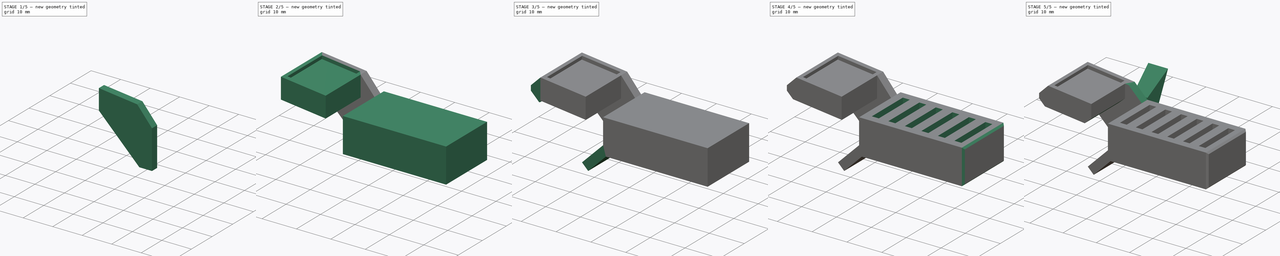
[diagram: build sequence overview — one tinted view per stage of 5, left to right]
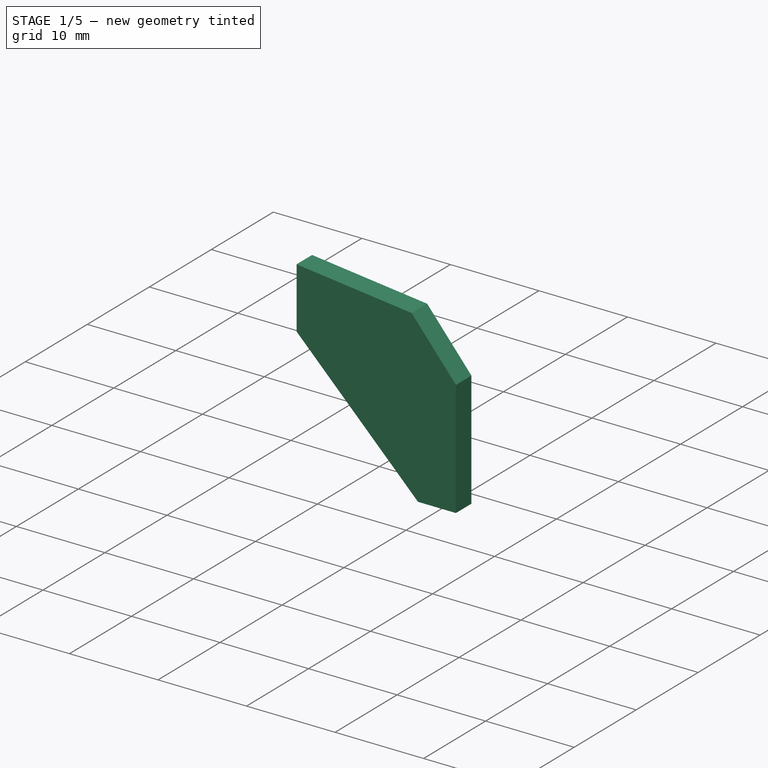
[diagram: stage 1 of 5 — iso view after this stage's code; geometry added in this stage tinted green]
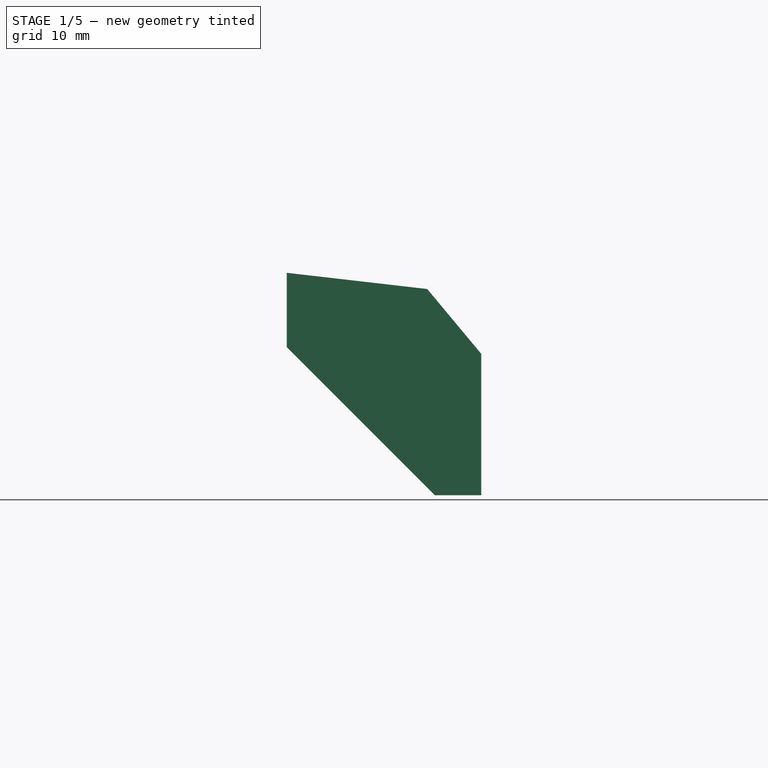
[diagram: stage 1 of 5 — front view after this stage's code; geometry added in this stage tinted green]
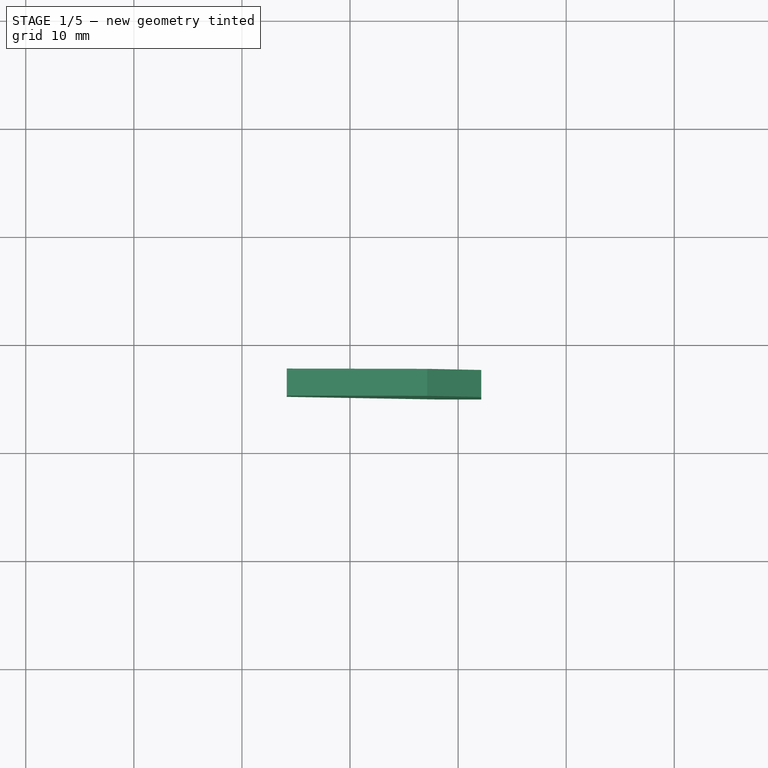
[diagram: stage 1 of 5 — top view after this stage's code; geometry added in this stage tinted green]
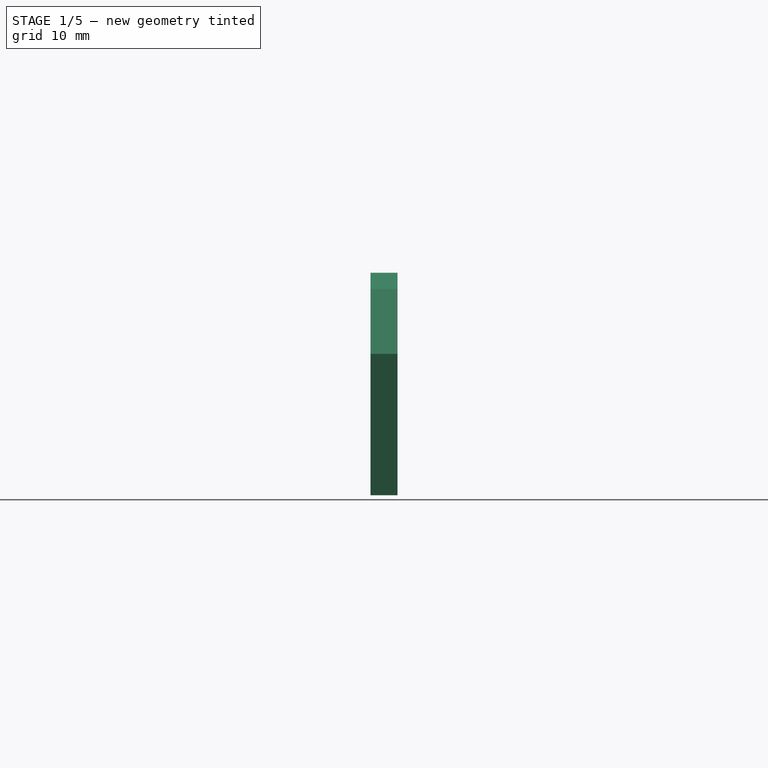
[diagram: stage 1 of 5 — right view after this stage's code; geometry added in this stage tinted green]
FCSTD DOCUMENT  (FreeCAD 2024.1006R14555 (Git shallow))
Label: silicone pad Revo
License: All rights reserved
LicenseURL: http://en.wikipedia.org/wiki/All_rights_reserved
objects: Sketcher::SketchObject×10, PartDesign::Pad×7, PartDesign::Chamfer×4, PartDesign::Pocket×3, PartDesign::SubShapeBinder×2, PartDesign::Body×2, Part::Feature×1, Part::Refine×1, Part::Cut×1, Part::SubShapeBinder×1, App::Link×1, Part::MultiFuse×1
note: 71 computed .brp shape members not serialized (recipe doc carries the construction recipe); baked Part::Feature solids carry a one-line shape summary decoded from their .brp

FEATURE [Part::Feature] ArtistDPro_PurgeBucketRedesign_Bucket_22APR21001_solid  label="ArtistDPro_PurgeBucketRedesign_Bucket_22APR21001 (Solid)"
  FixShape = 1
  InvalidShape = false
  TreeRank = 3
  ValidateShape = false
  shape: bbox 59 x 51.68 x 33.75 mm, 21792 faces (baked)
FEATURE [Part::Refine] Refined  label="ArtistDPro_PurgeBucketRedesign_Bucket_22APR21001 (Solid)001"
  FixShape = 1
  InvalidShape = false
  Source = -> ArtistDPro_PurgeBucketRedesign_Bucket_22APR21001_solid
  TreeRank = 4
  ValidateShape = false
FEATURE [PartDesign::SubShapeBinder] Binder  label="Binder(ArtistDPro_PurgeBucketRedesign_Bucket_22APR21001 (Solid)001)..."
  BindCopyOnChange = 0
  BindMode = 0
  ClaimChildren = false
  Context = -> Body [Binder.]
  EdgeTolerance = 1e-06
  FillStyle = 0
  FixShape = 1
  Fuse = false
  InvalidShape = false
  MakeFace = true
  MergeEdges = true
  OffsetFill = false
  OffsetIntersection = false
  OffsetJoinType = 0
  OffsetOpenResult = false
  Outline = false
  PartialLoad = false
  Relative = true
  SplitEdges = false
  Support = -> [Refined[Edge22621,Edge22615,Edge32]]
  TightBound = false
  TreeRank = 18
  ValidateShape = false
  _Version = 8
FEATURE [Sketcher::SketchObject] Sketch
  ArcFitTolerance = 1e-06
  AttachmentSupport = -> [XY_Plane]
  ExternalBSplineMaxDegree = 5
  ExternalBSplineTolerance = 0.0001
  ExternalGeometry = -> [Binder]
  FixShape = 1
  FullyConstrained = true
  InternalTolerance = 1e-06
  InvalidShape = false
  MakeInternals = false
  MapMode = 5
  Support = -> [XY_Plane]
  TreeRank = 17
  ValidateShape = false
  sketch-geometry (4):
    g0: LineSegment StartX=-9 StartY=27.5 StartZ=0 EndX=50 EndY=27.5 EndZ=0
    g1: LineSegment StartX=50 StartY=27.5 StartZ=0 EndX=50 EndY=-16.5 EndZ=0
    g2: LineSegment StartX=50 StartY=-16.5 StartZ=0 EndX=-9 EndY=-16.5 EndZ=0
    g3: LineSegment StartX=-9 StartY=-16.5 StartZ=0 EndX=-9 EndY=27.5 EndZ=0
  constraints (10):
    c: Coincident(g0,g1)
    c: Coincident(g1,g2)
    c: Coincident(g2,g3)
    c: Coincident(g3,g0)
    c: Horizontal(g0)
    c: Horizontal(g2)
    c: Vertical(g1)
    c: Vertical(g3)
    c: Coincident(g0,g-3)
    c: Coincident(g1,g-5)
FEATURE [PartDesign::Pad] Pad
  AddSubType = 0
  AlongSketchNormal = false
  AutoTaperInnerAngle = true
  CheckUpToFaceLimits = true
  ClaimChildren = false
  Direction = (0,0,1)
  Fit = 0
  FitJoin = 0
  FixShape = 1
  InnerFit = 0
  InnerFitJoin = 0
  InvalidShape = false
  Length = 60
  Length2 = 100
  Linearize = true
  Midplane = true
  NewSolid = false
  Profile = -> Sketch
  Refine = true
  Suppress = false
  TaperInnerAngle = 0
  TaperInnerAngleRev = 0
  TreeRank = 19
  Type = 0
  ValidateShape = false
  _ProfileBasedVersion = 1
FEATURE [PartDesign::Body] Body
  AutoGroupSolids = false
  ClaimAllChildren = false
  ExportMode = 0
  FixShape = 1
  Group = -> [Sketch,Binder,Pad]
  InvalidShape = false
  Origin = -> Origin
  Tip = -> Pad
  TreeRank = 16
  ValidateShape = false
  _ExportChildren = -> [Binder,Pad]
  _GroupVersion = 1
FEATURE [Part::Cut] Cut
  Base = -> Refined
  FixShape = 1
  InvalidShape = false
  Placement = pos=(0,0,5) rot=(0,0,1;0rad)
  Refine = true
  Tool = -> Body
  TreeRank = 122
  ValidateShape = false
FEATURE [PartDesign::SubShapeBinder] Binder001  label="Binder001(Cut)"
  BindCopyOnChange = 0
  BindMode = 0
  ClaimChildren = false
  Context = -> Body001 [Binder001.]
  EdgeTolerance = 1e-06
  FillStyle = 0
  FixShape = 1
  Fuse = false
  InvalidShape = false
  MakeFace = true
  MergeEdges = true
  OffsetFill = false
  OffsetIntersection = false
  OffsetJoinType = 0
  OffsetOpenResult = false
  Outline = false
  PartialLoad = false
  Relative = true
  SplitEdges = false
  Support = -> [Cut]
  TightBound = false
  TreeRank = 33
  ValidateShape = false
  _Version = 8
FEATURE [Sketcher::SketchObject] Sketch001
  ArcFitTolerance = 1e-06
  AttachmentSupport = -> [Binder001]
  ExternalBSplineMaxDegree = 5
  ExternalBSplineTolerance = 0.0001
  ExternalGeometry = -> [Binder001]
  FixShape = 1
  FullyConstrained = true
  InternalTolerance = 1e-06
  InvalidShape = false
  MakeInternals = false
  MapMode = 5
  Placement = pos=(0,27.5,0) rot=(1,0,0;1.5708rad)
  Support = -> [Binder001]
  TreeRank = 34
  ValidateShape = false
  sketch-geometry (4):
    g0: LineSegment StartX=-5.85714 StartY=40.5 StartZ=0 EndX=7.14286 EndY=39 EndZ=0
    g1: LineSegment StartX=12.1429 StartY=33 StartZ=0 EndX=7.14286 EndY=39 EndZ=0
    g2: LineSegment StartX=-5.85714 StartY=40.5 StartZ=0 EndX=-5.85714 EndY=33.636 EndZ=0
    g3: LineSegment StartX=-5.85714 StartY=33.636 StartZ=0 EndX=7.85714 EndY=19.9217 EndZ=0
  constraints (11):
    c: DistanceY(g-3,g0) = 6
    c: Coincident(g1,g-3)
    c: Coincident(g1,g0)
    c: DistanceX(g0,g0) = 13
    c: DistanceX(g0,g1) = 5
    c: DistanceY(g0,g0) = 1.5
    c: Coincident(g0,g2)
    c: Coincident(g3,g2)
    c: Angle(g3) = -0.785398
    c: Coincident(g3,g-4)
    c: Vertical(g2)
FEATURE [PartDesign::Pad] Pad001
  AddSubType = 0
  AlongSketchNormal = false
  AutoTaperInnerAngle = true
  CheckUpToFaceLimits = true
  ClaimChildren = false
  Direction = (0,-1,2e-16)
  Fit = 0
  FitJoin = 0
  FixShape = 1
  InnerFit = 0
  InnerFitJoin = 0
  InvalidShape = false
  Length = 2.5
  Length2 = 100
  Linearize = true
  NewSolid = false
  Profile = -> Sketch001
  Refine = true
  Suppress = false
  TaperInnerAngle = 0
  TaperInnerAngleRev = 0
  TreeRank = 35
  Type = 0
  ValidateShape = false
  _ProfileBasedVersion = 1
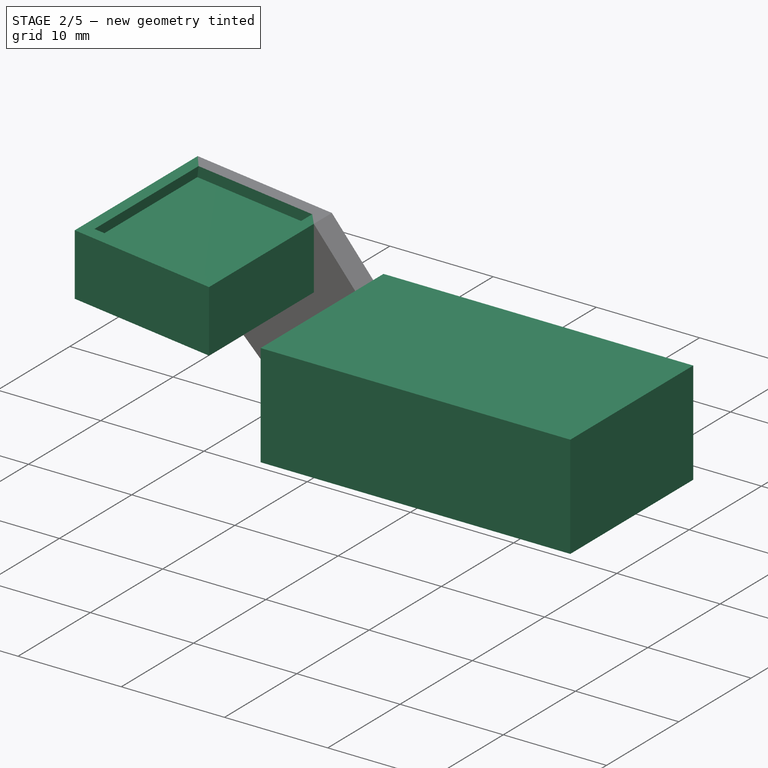
[diagram: stage 2 of 5 — iso view after this stage's code; geometry added in this stage tinted green]
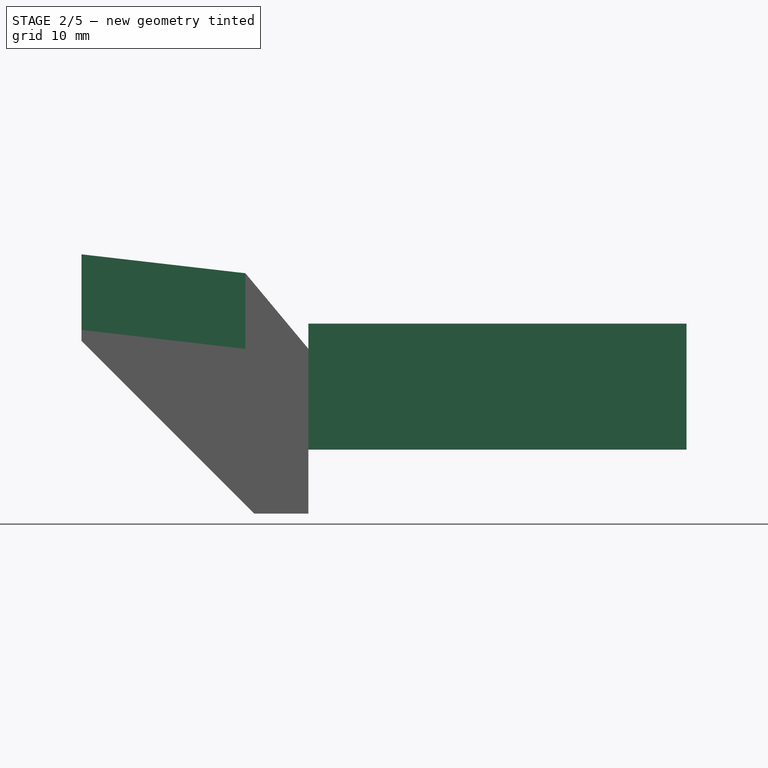
[diagram: stage 2 of 5 — front view after this stage's code; geometry added in this stage tinted green]
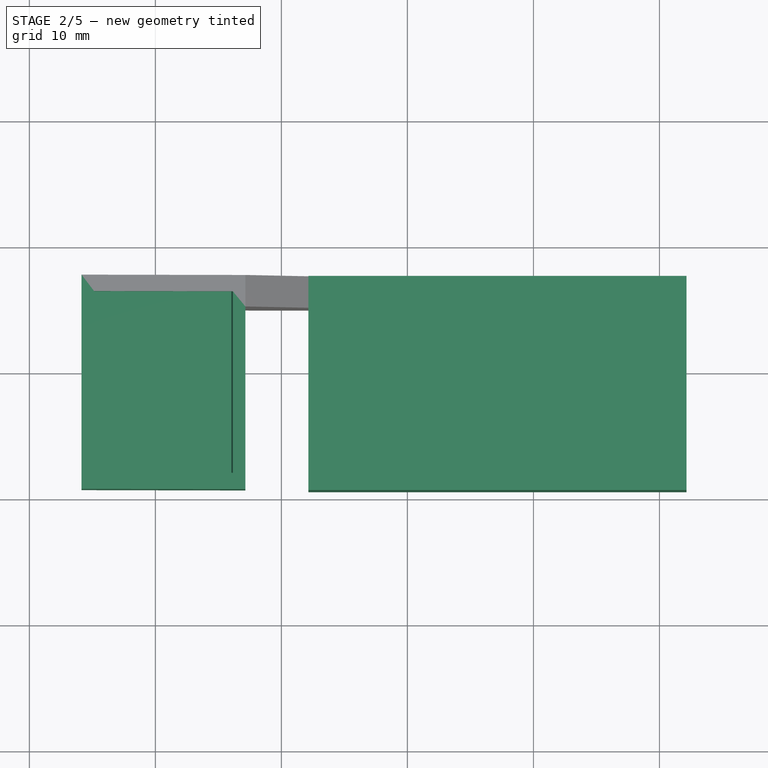
[diagram: stage 2 of 5 — top view after this stage's code; geometry added in this stage tinted green]
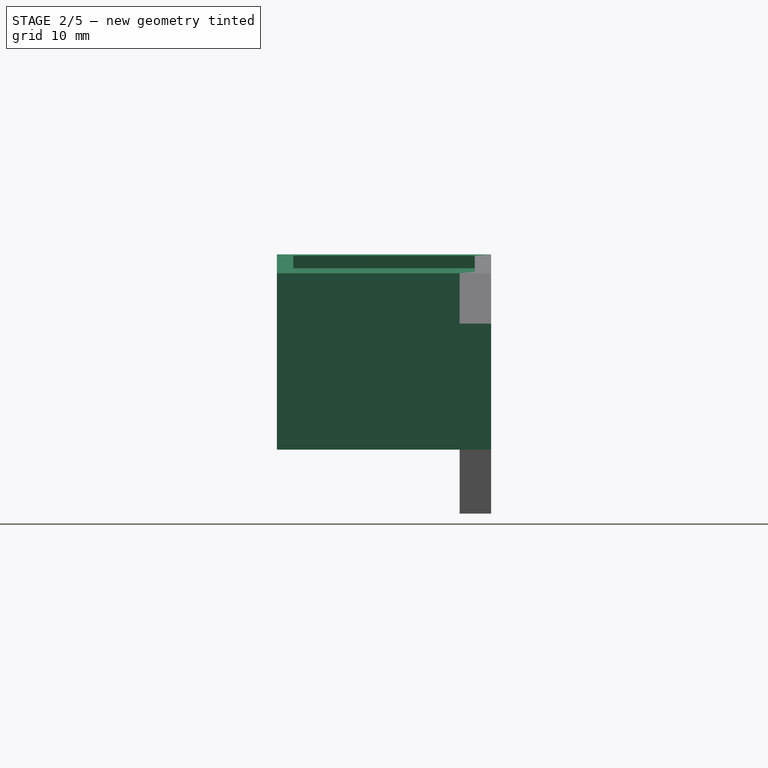
[diagram: stage 2 of 5 — right view after this stage's code; geometry added in this stage tinted green]
FEATURE [Sketcher::SketchObject] Sketch002
  ArcFitTolerance = 1e-06
  AttachmentSupport = -> [Pad001]
  ExternalBSplineMaxDegree = 5
  ExternalBSplineTolerance = 0.0001
  ExternalGeometry = -> [Sketch001]
  FixShape = 1
  FullyConstrained = true
  InternalTolerance = 1e-06
  InvalidShape = false
  MakeInternals = false
  MapMode = 5
  Placement = pos=(0,25,-6e-15) rot=(1,0,0;1.5708rad)
  Support = -> [Pad001]
  TreeRank = 42
  ValidateShape = false
  sketch-geometry (3):
    g0: LineSegment StartX=-5.85714 StartY=40.5 StartZ=0 EndX=-5.85714 EndY=34.5 EndZ=0
    g1: LineSegment StartX=-5.85714 StartY=34.5 StartZ=0 EndX=7.14286 EndY=33 EndZ=0
    g2: LineSegment StartX=7.14286 StartY=33 StartZ=0 EndX=7.14286 EndY=39 EndZ=0
  constraints (8):
    c: Coincident(g-3,g0)
    c: Vertical(g0)
    c: Coincident(g0,g1)
    c: Coincident(g1,g2)
    c: Coincident(g2,g-3)
    c: Vertical(g2)
    c: Parallel(g1,g-3)
    c: DistanceY(g2,g2) = 6
FEATURE [PartDesign::Pad] Pad002
  AddSubType = 0
  AlongSketchNormal = false
  AutoTaperInnerAngle = true
  BaseFeature = -> Pad001
  CheckUpToFaceLimits = true
  ClaimChildren = false
  Direction = (0,-1,2e-16)
  Fit = 0
  FitJoin = 0
  FixShape = 1
  InnerFit = 0
  InnerFitJoin = 0
  InvalidShape = false
  Length = 14.5
  Length2 = 100
  Linearize = true
  NewSolid = false
  Profile = -> Sketch002
  Refine = true
  Suppress = false
  TaperInnerAngle = 0
  TaperInnerAngleRev = 0
  TreeRank = 43
  Type = 0
  ValidateShape = false
  _ProfileBasedVersion = 1
FEATURE [Sketcher::SketchObject] Sketch003
  ArcFitTolerance = 1e-06
  AttachmentSupport = -> [Pad002]
  ExternalBSplineMaxDegree = 5
  ExternalBSplineTolerance = 0.0001
  ExternalGeometry = -> [Pad002]
  FixShape = 1
  FullyConstrained = true
  InternalTolerance = 1e-06
  InvalidShape = false
  MakeInternals = false
  MapMode = 5
  Placement = pos=(4.53472,8.3e-15,39.3009) rot=(0,1,0;0.114877rad)
  Support = -> [Pad002]
  TreeRank = 58
  ValidateShape = false
  sketch-geometry (6):
    g0: LineSegment StartX=1.62544 StartY=26.2009 StartZ=0 EndX=-9.46081 EndY=26.2009 EndZ=0
    g1: LineSegment StartX=-9.46081 StartY=26.2009 StartZ=0 EndX=-9.46081 EndY=11.7991 EndZ=0
    g2: LineSegment StartX=-9.46081 StartY=11.7991 StartZ=0 EndX=1.62544 EndY=11.7991 EndZ=0
    g3: LineSegment StartX=1.62544 StartY=11.7991 StartZ=0 EndX=1.62544 EndY=26.2009 EndZ=0
    g4: LineSegment [constr] StartX=2.62544 StartY=27.5 StartZ=0 EndX=-3.91769 EndY=19 EndZ=0
    g5: LineSegment [constr] StartX=-3.91769 StartY=19 StartZ=0 EndX=-10.4608 EndY=10.5 EndZ=0
  constraints (18):
    c: Coincident(g0,g1)
    c: Coincident(g1,g2)
    c: Coincident(g2,g3)
    c: Coincident(g3,g0)
    c: Horizontal(g0)
    c: Horizontal(g2)
    c: Vertical(g1)
    c: Vertical(g3)
    c: Coincident(g4,g-3)
    c: Coincident(g5,g4)
    c: Coincident(g5,g-4)
    c: Equal(g4,g5)
    c: Parallel(g4,g5)
    c: PointOnObject(g1,g5)
    c: Symmetric(g1,g0,g4)
    c: DistanceX(g2,g2) = -11.0863
    c: DistanceY(g3,g3) = 14.4019
    c: DistanceX(g-4,g1) = 1
FEATURE [PartDesign::Pocket] Pocket
  AddSubType = 1
  AutoTaperInnerAngle = true
  BaseFeature = -> Pad002
  CheckUpToFaceLimits = true
  ClaimChildren = false
  Direction = (-0.114624,-2e-16,-0.993409)
  Fit = 0
  FitJoin = 0
  FixShape = 1
  InnerFit = 0
  InnerFitJoin = 0
  InvalidShape = false
  Length = 1
  Length2 = 100
  Linearize = true
  NewSolid = false
  Profile = -> Sketch003
  Refine = true
  Suppress = false
  TaperInnerAngle = 0
  TaperInnerAngleRev = 0
  TreeRank = 59
  Type = 0
  ValidateShape = false
  _ProfileBasedVersion = 1
  _Version = 1
FEATURE [Sketcher::SketchObject] Sketch004
  ArcFitTolerance = 1e-06
  AttachmentSupport = -> [Pocket]
  ExternalBSplineMaxDegree = 5
  ExternalBSplineTolerance = 0.0001
  ExternalGeometry = -> [Pocket,Binder001]
  FixShape = 1
  FullyConstrained = true
  InternalTolerance = 1e-06
  InvalidShape = false
  MakeInternals = false
  MapMode = 5
  Placement = pos=(12.1429,0,0) rot=(0.57735,0.57735,0.57735;2.0944rad)
  Support = -> [Pocket]
  TreeRank = 70
  ValidateShape = false
  sketch-geometry (4):
    g0: LineSegment StartX=27.5 StartY=35 StartZ=0 EndX=10.5 EndY=35 EndZ=0
    g1: LineSegment StartX=10.5 StartY=35 StartZ=0 EndX=10.5 EndY=25 EndZ=0
    g2: LineSegment StartX=10.5 StartY=25 StartZ=0 EndX=27.5 EndY=25 EndZ=0
    g3: LineSegment StartX=27.5 StartY=25 StartZ=0 EndX=27.5 EndY=35 EndZ=0
  constraints (12):
    c: Coincident(g0,g1)
    c: Coincident(g1,g2)
    c: Coincident(g2,g3)
    c: Horizontal(g0)
    c: Horizontal(g2)
    c: Vertical(g1)
    c: Vertical(g3)
    c: Vertical(g0,g-4)
    c: DistanceY(g1,g1) = 10
    c: Coincident(g3,g0)
    c: Vertical(g0,g-3)
    c: DistanceY(g-3,g0) = 2
FEATURE [PartDesign::Pad] Pad003
  AddSubType = 0
  AlongSketchNormal = false
  AutoTaperInnerAngle = true
  BaseFeature = -> Pocket
  CheckUpToFaceLimits = true
  ClaimChildren = false
  Direction = (1,0,0)
  Fit = 0
  FitJoin = 0
  FixShape = 1
  InnerFit = 0
  InnerFitJoin = 0
  InvalidShape = false
  Length = 30
  Length2 = 100
  Linearize = true
  NewSolid = false
  Profile = -> Sketch004
  Refine = true
  Suppress = false
  TaperInnerAngle = 0
  TaperInnerAngleRev = 0
  TreeRank = 72
  Type = 0
  ValidateShape = false
  _ProfileBasedVersion = 1
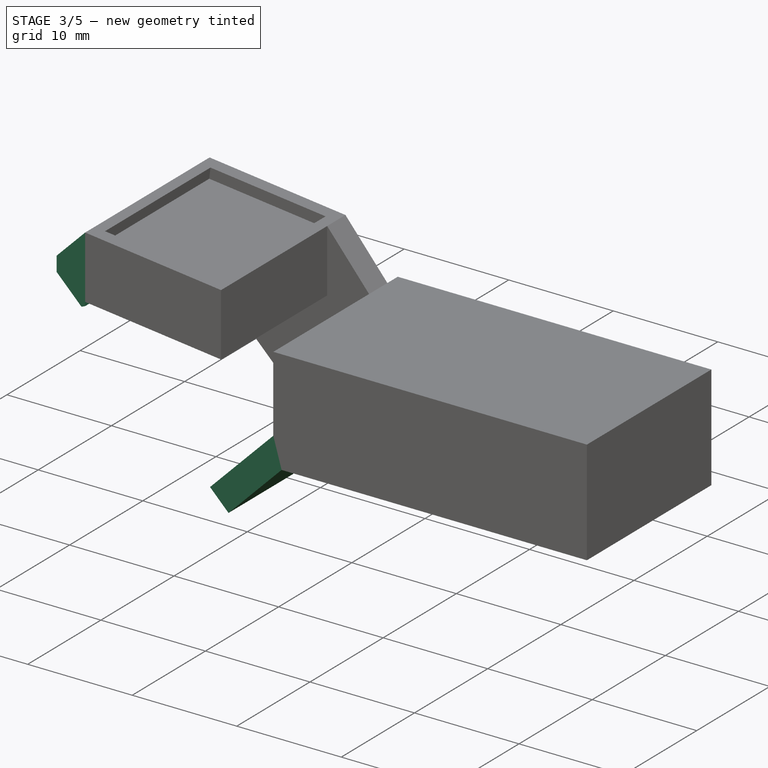
[diagram: stage 3 of 5 — iso view after this stage's code; geometry added in this stage tinted green]
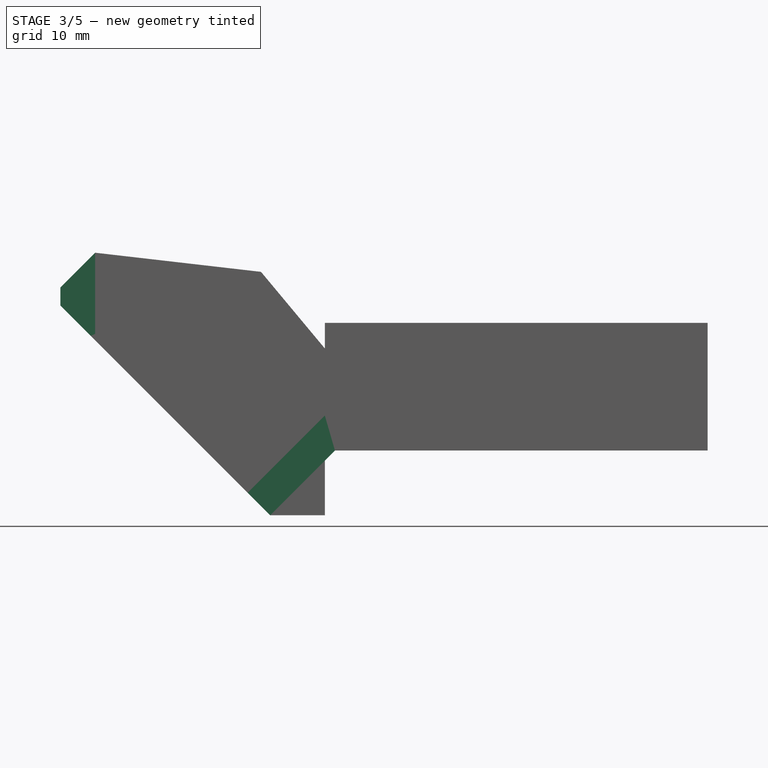
[diagram: stage 3 of 5 — front view after this stage's code; geometry added in this stage tinted green]
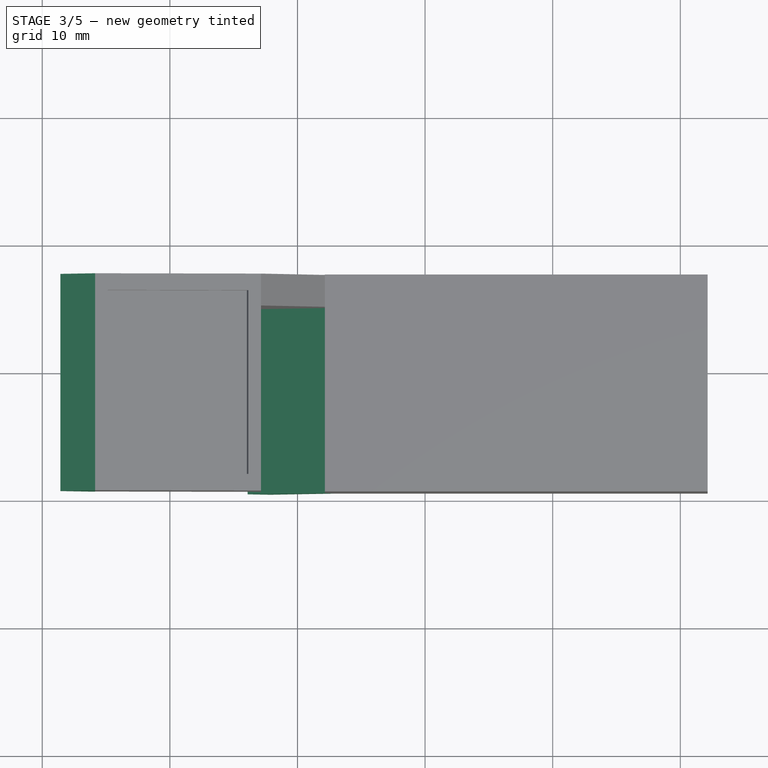
[diagram: stage 3 of 5 — top view after this stage's code; geometry added in this stage tinted green]
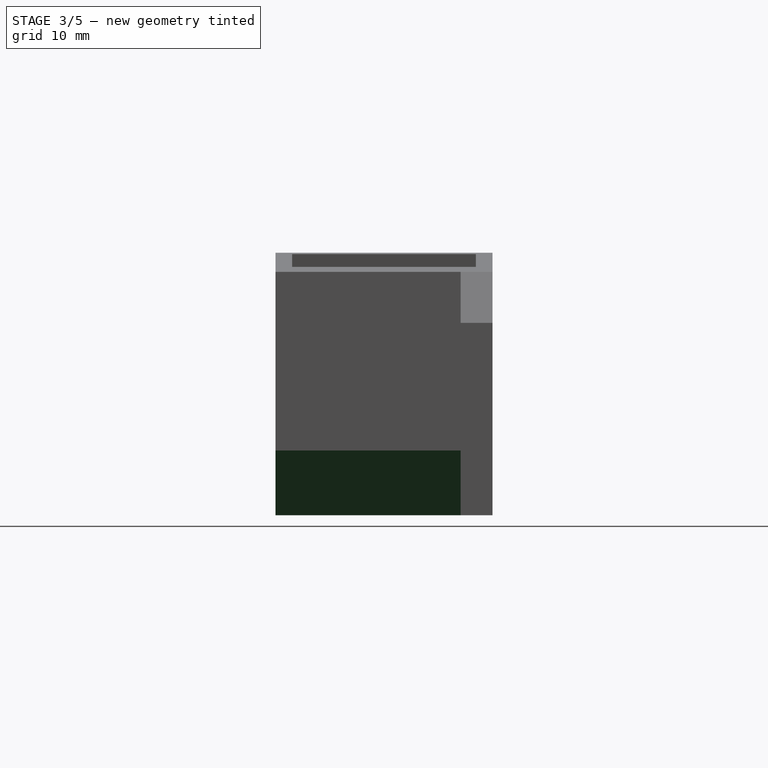
[diagram: stage 3 of 5 — right view after this stage's code; geometry added in this stage tinted green]
FEATURE [Sketcher::SketchObject] Sketch005
  ArcFitTolerance = 1e-06
  AttachmentSupport = -> [Pad003]
  ExternalBSplineMaxDegree = 5
  ExternalBSplineTolerance = 0.0001
  ExternalGeometry = -> [Pad003]
  FixShape = 1
  FullyConstrained = true
  InternalTolerance = 1e-06
  InvalidShape = false
  MakeInternals = false
  MapMode = 5
  Placement = pos=(0,27.5,0) rot=(0,0.707107,0.707107;3.14159rad)
  Support = -> [Pad003]
  TreeRank = 73
  ValidateShape = false
  sketch-geometry (2):
    g0: LineSegment StartX=5.85714 StartY=33.636 StartZ=0 EndX=9.28913 EndY=37.068 EndZ=0
    g1: LineSegment StartX=5.85714 StartY=40.5 StartZ=0 EndX=9.28913 EndY=37.068 EndZ=0
  constraints (5):
    c: Coincident(g0,g-4)
    c: Parallel(g-3,g0)
    c: Coincident(g1,g-5)
    c: Coincident(g1,g0)
    c: Perpendicular(g1,g0)
FEATURE [PartDesign::Pad] Pad004
  AddSubType = 0
  AlongSketchNormal = false
  AutoTaperInnerAngle = true
  BaseFeature = -> Pad003
  CheckUpToFaceLimits = true
  ClaimChildren = false
  Direction = (0,1,-2e-16)
  Fit = 0
  FitJoin = 0
  FixShape = 1
  InnerFit = 0
  InnerFitJoin = 0
  InvalidShape = false
  Length = 10
  Length2 = 100
  Linearize = true
  NewSolid = false
  Profile = -> Sketch005
  Refine = true
  Suppress = false
  TaperInnerAngle = 0
  TaperInnerAngleRev = 0
  TreeRank = 74
  Type = 3
  UpToFace = -> Pad003 [Face9]
  ValidateShape = false
  _ProfileBasedVersion = 1
FEATURE [PartDesign::Chamfer] Chamfer
  AddSubType = 0
  Angle = 45
  Base = -> Pad004 [Edge33]
  BaseFeature = -> Pad004
  ChamferType = 0
  FixShape = 1
  FlipDirection = false
  InvalidShape = false
  NewSolid = false
  Refine = true
  Size = 1
  Size2 = 1
  SupportTransform = false
  Suppress = false
  TreeRank = 75
  UseAllEdges = false
  ValidateShape = false
FEATURE [PartDesign::Chamfer] Chamfer001
  AddSubType = 0
  Angle = 45
  Base = -> Chamfer [Edge28]
  BaseFeature = -> Chamfer
  ChamferType = 0
  FixShape = 1
  FlipDirection = false
  InvalidShape = false
  NewSolid = false
  Refine = true
  Size = 0.5
  Size2 = 1
  SupportTransform = false
  Suppress = false
  TreeRank = 76
  UseAllEdges = false
  ValidateShape = false
FEATURE [Sketcher::SketchObject] Sketch006
  ArcFitTolerance = 1e-06
  AttachmentSupport = -> [Chamfer001]
  ExternalBSplineMaxDegree = 5
  ExternalBSplineTolerance = 0.0001
  ExternalGeometry = -> [Chamfer001]
  FixShape = 1
  FullyConstrained = true
  InternalTolerance = 1e-06
  InvalidShape = false
  MakeInternals = false
  MapMode = 5
  Placement = pos=(0,25,-6e-15) rot=(1,0,0;1.5708rad)
  Support = -> [Chamfer001]
  TreeRank = 77
  ValidateShape = false
  sketch-geometry (4):
    g0: LineSegment StartX=7.85714 StartY=19.9217 StartZ=0 EndX=12.9354 EndY=25 EndZ=0
    g1: LineSegment StartX=6.08938 StartY=21.6895 StartZ=0 EndX=12.1429 EndY=27.743 EndZ=0
    g2: LineSegment StartX=6.08938 StartY=21.6895 StartZ=0 EndX=7.85714 EndY=19.9217 EndZ=0
    g3: LineSegment StartX=12.9354 StartY=25 StartZ=0 EndX=12.1429 EndY=27.743 EndZ=0
  constraints (11):
    c: Coincident(g0,g-4)
    c: PointOnObject(g0,g-5)
    c: PointOnObject(g1,g-4)
    c: Perpendicular(g1,g-4)
    c: Perpendicular(g0,g-4)
    c: PointOnObject(g1,g-6)
    c: Distance(g0,g1) = 2.5
    c: Coincident(g2,g1)
    c: Coincident(g2,g0)
    c: Coincident(g3,g0)
    c: Coincident(g3,g1)
FEATURE [PartDesign::Pad] Pad005
  AddSubType = 0
  AlongSketchNormal = false
  AutoTaperInnerAngle = true
  BaseFeature = -> Chamfer001
  CheckUpToFaceLimits = true
  ClaimChildren = false
  Direction = (0,-1,2e-16)
  Fit = 0
  FitJoin = 0
  FixShape = 1
  InnerFit = 0
  InnerFitJoin = 0
  InvalidShape = false
  Length = 10
  Length2 = 100
  Linearize = true
  NewSolid = false
  Profile = -> Sketch006
  Refine = true
  Suppress = false
  TaperInnerAngle = 0
  TaperInnerAngleRev = 0
  TreeRank = 78
  Type = 3
  UpToFace = -> Chamfer001 [Face24]
  ValidateShape = false
  _ProfileBasedVersion = 1
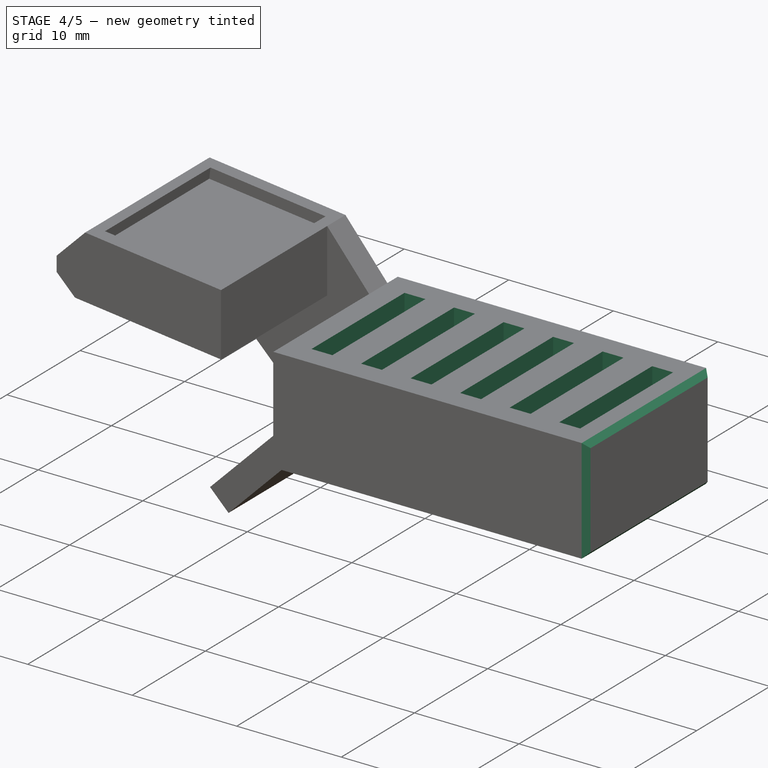
[diagram: stage 4 of 5 — iso view after this stage's code; geometry added in this stage tinted green]
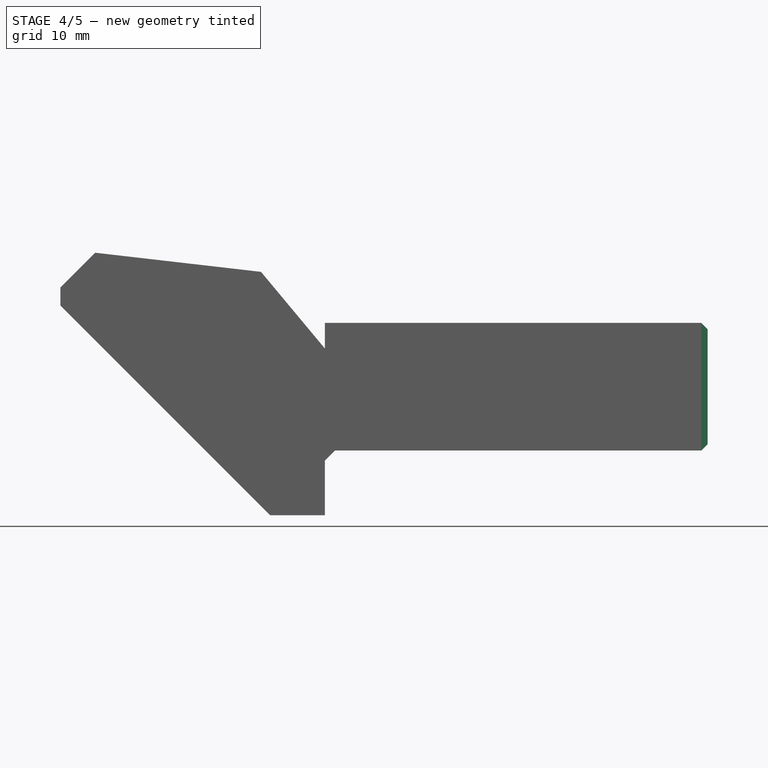
[diagram: stage 4 of 5 — front view after this stage's code; geometry added in this stage tinted green]
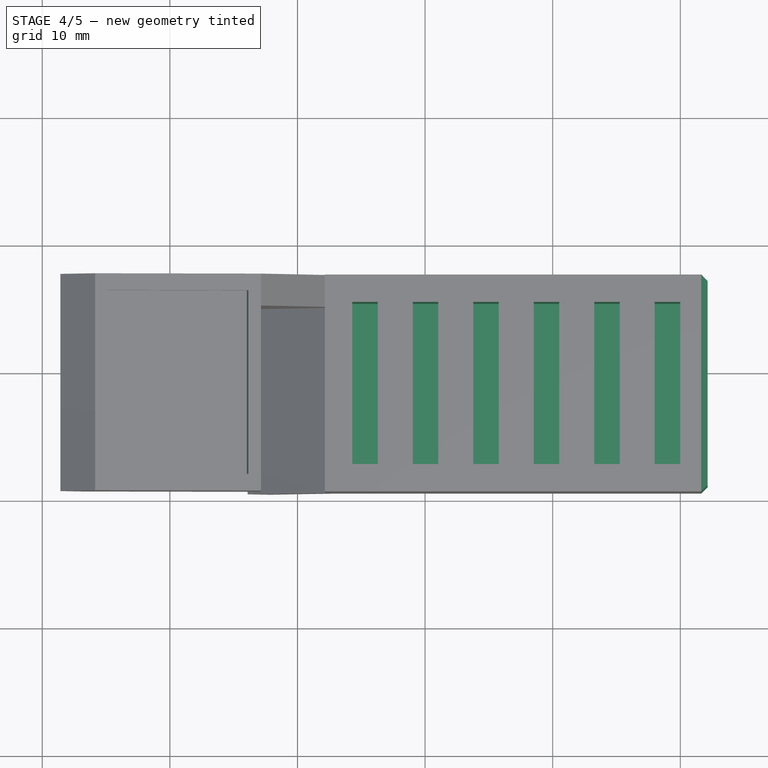
[diagram: stage 4 of 5 — top view after this stage's code; geometry added in this stage tinted green]
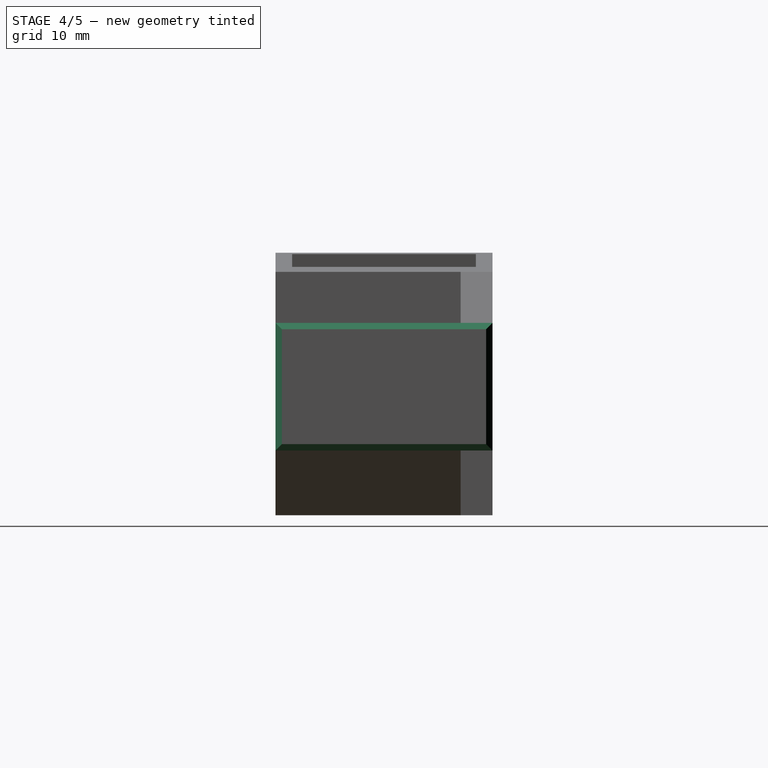
[diagram: stage 4 of 5 — right view after this stage's code; geometry added in this stage tinted green]
FEATURE [Sketcher::SketchObject] Sketch007
  ArcFitTolerance = 1e-06
  AttachmentSupport = -> [Pad005]
  ExternalBSplineMaxDegree = 5
  ExternalBSplineTolerance = 0.0001
  ExternalGeometry = -> [Pad005]
  FixShape = 1
  FullyConstrained = true
  InternalTolerance = 1e-06
  InvalidShape = false
  MakeInternals = false
  MapMode = 5
  Placement = pos=(0,0,35) rot=(0,0,1;0rad)
  Support = -> [Pad005]
  TreeRank = 79
  ValidateShape = false
  sketch-geometry (36):
    g0: LineSegment StartX=14.2929 StartY=25.35 StartZ=0 EndX=16.2929 EndY=25.35 EndZ=0
    g1: LineSegment StartX=16.2929 StartY=25.35 StartZ=0 EndX=16.2929 EndY=12.65 EndZ=0
    g2: LineSegment StartX=16.2929 StartY=12.65 StartZ=0 EndX=14.2929 EndY=12.65 EndZ=0
    g3: LineSegment StartX=14.2929 StartY=12.65 StartZ=0 EndX=14.2929 EndY=25.35 EndZ=0
    g4: LineSegment StartX=28.5129 StartY=25.35 StartZ=0 EndX=30.5129 EndY=25.35 EndZ=0
    g5: LineSegment StartX=30.5129 StartY=12.65 StartZ=0 EndX=28.5129 EndY=12.65 EndZ=0
    g6: LineSegment StartX=28.5129 StartY=12.65 StartZ=0 EndX=28.5129 EndY=25.35 EndZ=0
    g7: LineSegment StartX=37.9929 StartY=25.35 StartZ=0 EndX=39.9929 EndY=25.35 EndZ=0
    g8: LineSegment StartX=39.9929 StartY=25.35 StartZ=0 EndX=39.9929 EndY=12.65 EndZ=0
    g9: LineSegment StartX=39.9929 StartY=12.65 StartZ=0 EndX=37.9929 EndY=12.65 EndZ=0
    g10: LineSegment StartX=37.9929 StartY=12.65 StartZ=0 EndX=37.9929 EndY=25.35 EndZ=0
    g11: LineSegment [constr] StartX=12.1429 StartY=25.35 StartZ=0 EndX=14.2929 EndY=25.35 EndZ=0
    g12: LineSegment [constr] StartX=39.9929 StartY=25.35 StartZ=0 EndX=42.1429 EndY=25.35 EndZ=0
    g13: LineSegment [constr] StartX=39.9929 StartY=25.35 StartZ=0 EndX=39.9929 EndY=27.5 EndZ=0
    g14: LineSegment [constr] StartX=39.9929 StartY=12.65 StartZ=0 EndX=39.9929 EndY=10.5 EndZ=0
    g15: LineSegment StartX=30.5129 StartY=12.65 StartZ=0 EndX=30.5129 EndY=25.35 EndZ=0
    g16: LineSegment [constr] StartX=16.2929 StartY=25.35 StartZ=0 EndX=19.0329 EndY=25.35 EndZ=0
    g17: LineSegment [constr] StartX=19.0329 StartY=25.35 StartZ=0 EndX=21.0329 EndY=25.35 EndZ=0
    g18: LineSegment [constr] StartX=30.5129 StartY=25.35 StartZ=0 EndX=33.2529 EndY=25.35 EndZ=0
    g19: LineSegment [constr] StartX=33.2529 StartY=25.35 StartZ=0 EndX=35.2529 EndY=25.35 EndZ=0
    g20: LineSegment [constr] StartX=35.2529 StartY=25.35 StartZ=0 EndX=37.9929 EndY=25.35 EndZ=0
    g21: LineSegment StartX=19.0329 StartY=25.35 StartZ=0 EndX=21.0329 EndY=25.35 EndZ=0
    g22: LineSegment StartX=21.0329 StartY=25.35 StartZ=0 EndX=21.0329 EndY=12.65 EndZ=0
    g23: LineSegment StartX=21.0329 StartY=12.65 StartZ=0 EndX=19.0329 EndY=12.65 EndZ=0
    g24: LineSegment StartX=19.0329 StartY=12.65 StartZ=0 EndX=19.0329 EndY=25.35 EndZ=0
    g25: LineSegment StartX=33.2529 StartY=25.35 StartZ=0 EndX=35.2529 EndY=25.35 EndZ=0
    g26: LineSegment StartX=35.2529 StartY=25.35 StartZ=0 EndX=35.2529 EndY=12.65 EndZ=0
    g27: LineSegment StartX=35.2529 StartY=12.65 StartZ=0 EndX=33.2529 EndY=12.65 EndZ=0
    g28: LineSegment StartX=33.2529 StartY=12.65 StartZ=0 EndX=33.2529 EndY=25.35 EndZ=0
    g29: LineSegment [constr] StartX=21.0329 StartY=25.35 StartZ=0 EndX=23.7729 EndY=25.35 EndZ=0
    g30: LineSegment [constr] StartX=23.7729 StartY=25.35 StartZ=0 EndX=25.7729 EndY=25.35 EndZ=0
    g31: LineSegment [constr] StartX=25.7729 StartY=25.35 StartZ=0 EndX=28.5129 EndY=25.35 EndZ=0
    g32: LineSegment StartX=23.7729 StartY=25.35 StartZ=0 EndX=25.7729 EndY=25.35 EndZ=0
    g33: LineSegment StartX=25.7729 StartY=25.35 StartZ=0 EndX=25.7729 EndY=12.65 EndZ=0
    g34: LineSegment StartX=25.7729 StartY=12.65 StartZ=0 EndX=23.7729 EndY=12.65 EndZ=0
    g35: LineSegment StartX=23.7729 StartY=12.65 StartZ=0 EndX=23.7729 EndY=25.35 EndZ=0
  constraints (100):
    c: Coincident(g0,g1)
    c: Coincident(g1,g2)
    c: Coincident(g2,g3)
    c: Coincident(g3,g0)
    c: Horizontal(g0)
    c: Horizontal(g2)
    c: Vertical(g1)
    c: Vertical(g3)
    c: Coincident(g5,g6)
    c: Coincident(g6,g4)
    c: Horizontal(g4)
    c: Horizontal(g5)
    c: Vertical(g6)
    c: Coincident(g7,g8)
    c: Coincident(g8,g9)
    c: Coincident(g9,g10)
    c: Coincident(g10,g7)
    c: Horizontal(g7)
    c: Horizontal(g9)
    c: Vertical(g8)
    c: Vertical(g10)
    c: Coincident(g11,g0)
    c: Horizontal(g11)
    c: Coincident(g16,g0)
    c: Coincident(g31,g4)
    c: Coincident(g18,g4)
    c: Coincident(g20,g7)
    c: Coincident(g12,g7)
    c: Horizontal(g12)
    c: Vertical(g12,g-3)
    c: Vertical(g11,g-3)
    c: Equal(g0,g4)
    c: Equal(g4,g7)
    c: Horizontal(g1,g5)
    c: Horizontal(g5,g9)
    c: Coincident(g13,g7)
    c: PointOnObject(g13,g-3)
    c: Vertical(g13)
    c: Coincident(g14,g8)
    c: PointOnObject(g14,g-4)
    c: Vertical(g14)
    c: DistanceX(g7,g7) = 2
    c: Equal(g12,g11)
    c: Equal(g11,g13)
    c: Equal(g14,g13)
    c: Coincident(g15,g5)
    c: Coincident(g15,g4)
    c: Vertical(g15)
    c: DistanceY(g3,g3) = 12.7
    c: Coincident(g16,g17)
    c: Horizontal(g16)
    c: Coincident(g17,g29)
    c: Horizontal(g17)
    c: Coincident(g18,g19)
    c: Horizontal(g18)
    c: Coincident(g19,g20)
    c: Horizontal(g19)
    c: Horizontal(g20)
    c: Coincident(g21,g22)
    c: Coincident(g22,g23)
    c: Coincident(g23,g24)
    c: Coincident(g24,g21)
    c: Horizontal(g23)
    c: Vertical(g22)
    c: Vertical(g24)
    c: Coincident(g21,g16)
    c: Coincident(g25,g26)
    c: Coincident(g26,g27)
    c: Coincident(g27,g28)
    c: Coincident(g28,g25)
    c: Horizontal(g27)
    c: Vertical(g26)
    c: Vertical(g28)
    c: Coincident(g25,g18)
    c: Coincident(g19,g25)
    c: Coincident(g17,g21)
    c: Horizontal(g1,g23)
    c: Horizontal(g5,g27)
    c: Equal(g23,g5)
    c: Equal(g5,g27)
    c: Coincident(g29,g30)
    c: Horizontal(g29)
    c: Coincident(g30,g31)
    c: Horizontal(g30)
    c: Horizontal(g31)
    c: Coincident(g32,g33)
    c: Coincident(g33,g34)
    c: Coincident(g34,g35)
    c: Coincident(g35,g32)
    c: Horizontal(g34)
    c: Vertical(g33)
    c: Vertical(g35)
    c: Coincident(g32,g29)
    c: Coincident(g30,g32)
    c: Horizontal(g22,g34)
    c: Equal(g23,g34)
    c: Equal(g20,g18)
    c: Equal(g18,g31)
    c: Equal(g31,g29)
    c: Equal(g29,g16)
FEATURE [PartDesign::Pocket] Pocket001
  AddSubType = 1
  AutoTaperInnerAngle = true
  BaseFeature = -> Pad005
  CheckUpToFaceLimits = true
  ClaimChildren = false
  Direction = (0,0,-1)
  Fit = 0
  FitJoin = 0
  FixShape = 1
  InnerFit = 0
  InnerFitJoin = 0
  InvalidShape = false
  Length = 9
  Length2 = 100
  Linearize = true
  NewSolid = false
  Profile = -> Sketch007
  Refine = true
  Suppress = false
  TaperInnerAngle = 0
  TaperInnerAngleRev = 0
  TreeRank = 80
  Type = 0
  ValidateShape = false
  _ProfileBasedVersion = 1
  _Version = 1
FEATURE [PartDesign::Chamfer] Chamfer002
  AddSubType = 0
  Angle = 45
  Base = -> Pocket001 [Edge39,Edge70,Edge50,Edge71]
  BaseFeature = -> Pocket001
  ChamferType = 0
  FixShape = 1
  FlipDirection = false
  InvalidShape = false
  NewSolid = false
  Refine = true
  Size = 0.5
  Size2 = 1
  SupportTransform = false
  Suppress = false
  TreeRank = 81
  UseAllEdges = false
  ValidateShape = false
FEATURE [Sketcher::SketchObject] Sketch008
  ArcFitTolerance = 1e-06
  AttachmentSupport = -> [Chamfer002]
  ExternalBSplineMaxDegree = 5
  ExternalBSplineTolerance = 0.0001
  ExternalGeometry = -> [Chamfer002]
  FixShape = 1
  FullyConstrained = true
  InternalTolerance = 1e-06
  InvalidShape = false
  MakeInternals = false
  MapMode = 5
  Placement = pos=(0,10.5,-5.4e-15) rot=(1,0,0;1.5708rad)
  Support = -> [Chamfer002]
  TreeRank = 93
  ValidateShape = false
  sketch-geometry (3):
    g0: LineSegment StartX=7.14286 StartY=33 StartZ=0 EndX=-10.8571 EndY=35.0769 EndZ=0
    g1: LineSegment StartX=-10.8571 StartY=35.0769 StartZ=0 EndX=-10.8571 EndY=15 EndZ=0
    g2: LineSegment StartX=-10.8571 StartY=15 StartZ=0 EndX=7.14286 EndY=33 EndZ=0
  constraints (8):
    c: Coincident(g-3,g0)
    c: Coincident(g0,g1)
    c: Coincident(g1,g2)
    c: Coincident(g2,g0)
    c: PointOnObject(g-3,g0)
    c: DistanceX(g0,g-3) = 5
    c: Vertical(g1)
    c: Perpendicular(g-4,g2)
FEATURE [PartDesign::Pocket] Pocket002
  AddSubType = 1
  AlongSketchNormal = false
  AutoTaperInnerAngle = true
  BaseFeature = -> Chamfer002
  CheckUpToFaceLimits = true
  ClaimChildren = false
  Direction = (0,1,-4e-16)
  Fit = 0
  FitJoin = 0
  FixShape = 1
  InnerFit = 0
  InnerFitJoin = 0
  InvalidShape = false
  Length = 0
  Length2 = 10
  Linearize = true
  NewSolid = false
  Profile = -> Sketch008
  ReferenceAxis = -> Sketch008 [N_Axis]
  Refine = true
  Suppress = false
  TaperInnerAngle = 0
  TaperInnerAngleRev = 0
  TreeRank = 94
  Type = 3
  UpToFace = -> Chamfer002 [Face44]
  ValidateShape = false
  _ProfileBasedVersion = 1
  _Version = 1
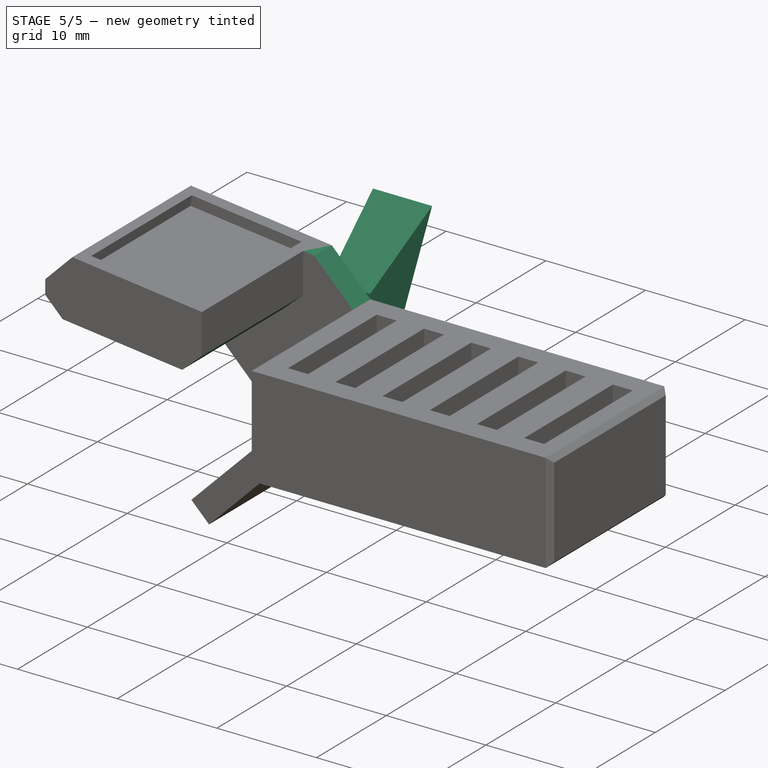
[diagram: stage 5 of 5 — iso view after this stage's code; geometry added in this stage tinted green]
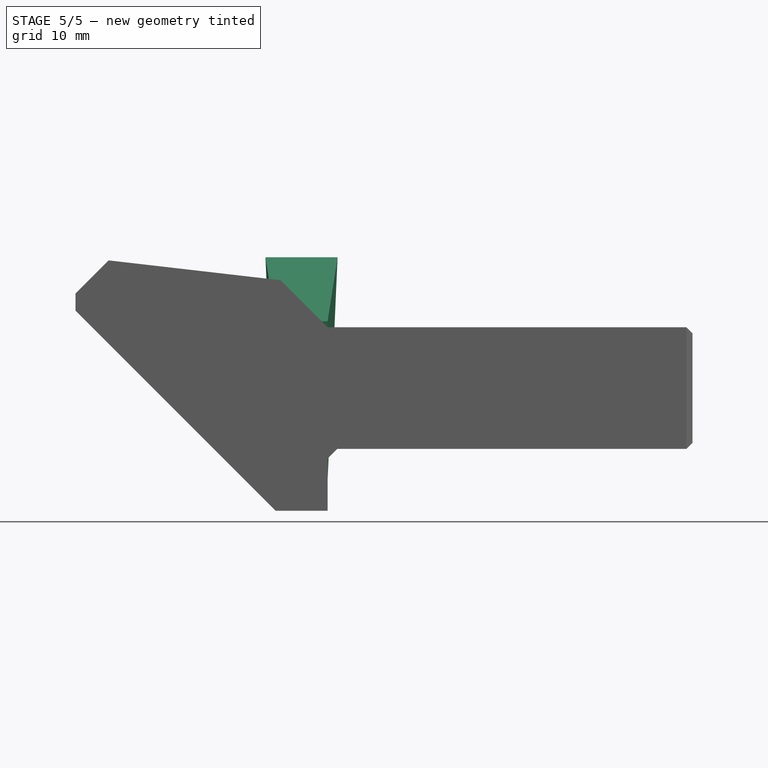
[diagram: stage 5 of 5 — front view after this stage's code; geometry added in this stage tinted green]
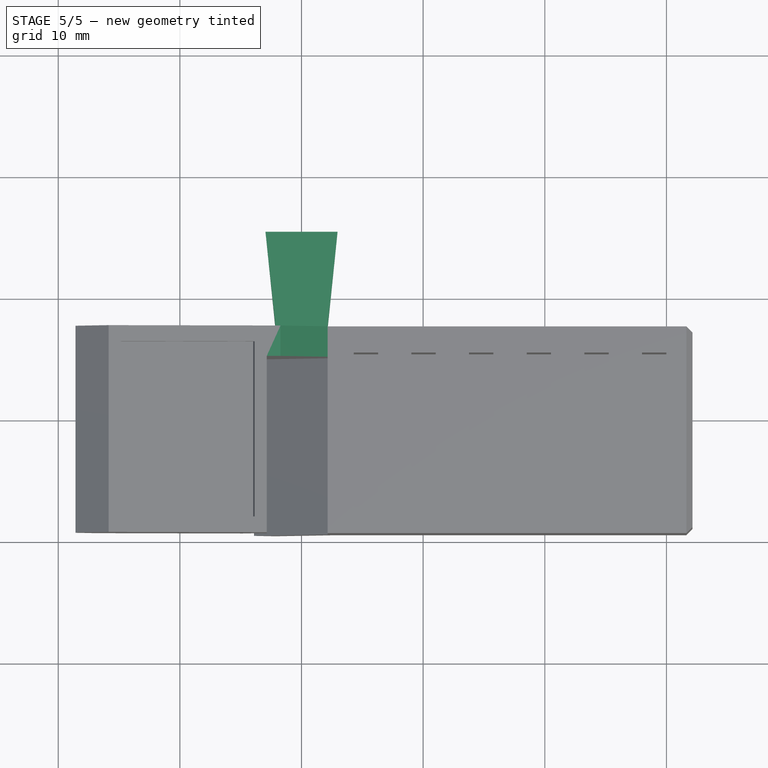
[diagram: stage 5 of 5 — top view after this stage's code; geometry added in this stage tinted green]
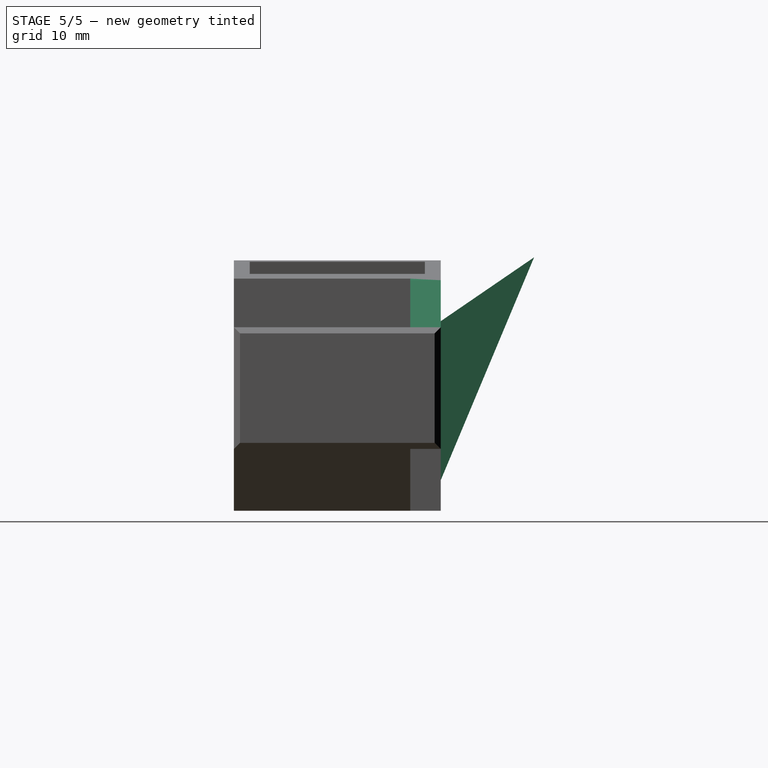
[diagram: stage 5 of 5 — right view after this stage's code; geometry added in this stage tinted green]
FEATURE [PartDesign::Chamfer] Chamfer003
  AddSubType = 0
  Angle = 45
  Base = -> Pocket002 [Edge136]
  BaseFeature = -> Pocket002
  ChamferType = 0
  FixShape = 1
  FlipDirection = false
  InvalidShape = false
  NewSolid = false
  Refine = true
  Size = 2
  Size2 = 1
  SupportTransform = false
  Suppress = false
  TreeRank = 99
  UseAllEdges = false
  ValidateShape = false
FEATURE [Part::SubShapeBinder] Import  label="Import(Cut)"
  BindCopyOnChange = 0
  BindMode = 0
  ClaimChildren = false
  Context = -> Body001 [Import.]
  EdgeTolerance = 1e-06
  FillStyle = 0
  FixShape = 1
  Fuse = false
  InvalidShape = false
  MakeFace = false
  MergeEdges = true
  OffsetFill = false
  OffsetIntersection = false
  OffsetJoinType = 0
  OffsetOpenResult = false
  Outline = false
  PartialLoad = false
  Relative = true
  SplitEdges = false
  Support = -> [Cut]
  TightBound = false
  TreeRank = 113
  ValidateShape = false
  _Version = 8
FEATURE [Sketcher::SketchObject] Sketch009
  ArcFitTolerance = 1e-06
  AttachmentSupport = -> [Sketch001]
  ExternalBSplineMaxDegree = 5
  ExternalBSplineTolerance = 0.0001
  ExternalGeometry = -> [Chamfer003,Import]
  FixShape = 1
  FullyConstrained = true
  InternalTolerance = 1e-06
  InvalidShape = false
  MakeInternals = false
  MapMode = 5
  Placement = pos=(0,27.5,0) rot=(-1,0,0;1.5708rad)
  Support = -> [Sketch001]
  TreeRank = 112
  ValidateShape = false
  sketch-geometry (4):
    g0: LineSegment StartX=7.14286 StartY=-39 StartZ=0 EndX=12.1429 EndY=-33 EndZ=0
    g1: LineSegment StartX=12.1429 StartY=-33 StartZ=0 EndX=12.1429 EndY=-35 EndZ=0
    g2: LineSegment StartX=12.1429 StartY=-35 StartZ=0 EndX=8.27329 EndY=-38.8696 EndZ=0
    g3: LineSegment StartX=7.14286 StartY=-39 StartZ=0 EndX=8.27329 EndY=-38.8696 EndZ=0
  constraints (9):
    c: Coincident(g0,g-3)
    c: Coincident(g0,g-5)
    c: Coincident(g1,g0)
    c: Coincident(g1,g-4)
    c: Coincident(g2,g1)
    c: Coincident(g3,g0)
    c: Coincident(g3,g2)
    c: Parallel(g2,g-6)
    c: Parallel(g-7,g3)
FEATURE [PartDesign::Pad] Pad006
  AddSubType = 0
  AlongSketchNormal = false
  AutoTaperInnerAngle = true
  BaseFeature = -> Chamfer003
  CheckUpToFaceLimits = true
  ClaimChildren = false
  Direction = (0,1,-2e-16)
  Fit = 0
  FitJoin = 0
  FixShape = 1
  InnerFit = 0
  InnerFitJoin = 0
  InvalidShape = false
  Length = 2.5
  Length2 = 10
  Linearize = true
  NewSolid = false
  Profile = -> Sketch009
  ReferenceAxis = -> Sketch009 [N_Axis]
  Refine = true
  Reversed = true
  Suppress = false
  TaperInnerAngle = 0
  TaperInnerAngleRev = 0
  TreeRank = 114
  Type = 0
  ValidateShape = false
  _ProfileBasedVersion = 1
FEATURE [PartDesign::Body] Body001  label="silicon pad support"
  AutoGroupSolids = false
  ClaimAllChildren = false
  ExportMode = 0
  FixShape = 1
  Group = -> [Binder001,Sketch001,Import,Pad001,Sketch002,Pad002,Sketch003,Pocket,Sketch004,Pad003,Sketch005,Pad004,Chamfer,Chamfer001,Sketch006,Pad005,Sketch007,Pocket001,Chamfer002,Sketch008,Pocket002,Chamfer003,Sketch009,Pad006]
  InvalidShape = false
  Origin = -> Origin001
  Tip = -> Pad006
  TreeRank = 121
  ValidateShape = false
  _ExportChildren = -> [Binder001,Import,Pad001,Pad002,Pocket,Pad003,Pad004,Chamfer,Chamfer001,Pad005,Pocket001,Chamfer002,Pocket002,Chamfer003,Pad006]
  _GroupVersion = 1
FEATURE [App::Link] Link  label="Link(Cut)"
  AutoLinkLabel = true
  AutoPlacement = true
  LinkPlacement = pos=(0,-2.98023e-07,7.5) rot=(0,0,1;0rad)
  LinkedObject = -> Cut
  Placement = pos=(0,-2.98023e-07,7.5) rot=(0,0,1;0rad)
  SyncGroupVisibility = false
  TreeRank = 123
  _LinkVersion = 1
FEATURE [Part::MultiFuse] Fusion
  FixShape = 1
  InvalidShape = false
  Refine = true
  Shapes = -> [Body001,Link]
  TreeRank = 124
  ValidateShape = false
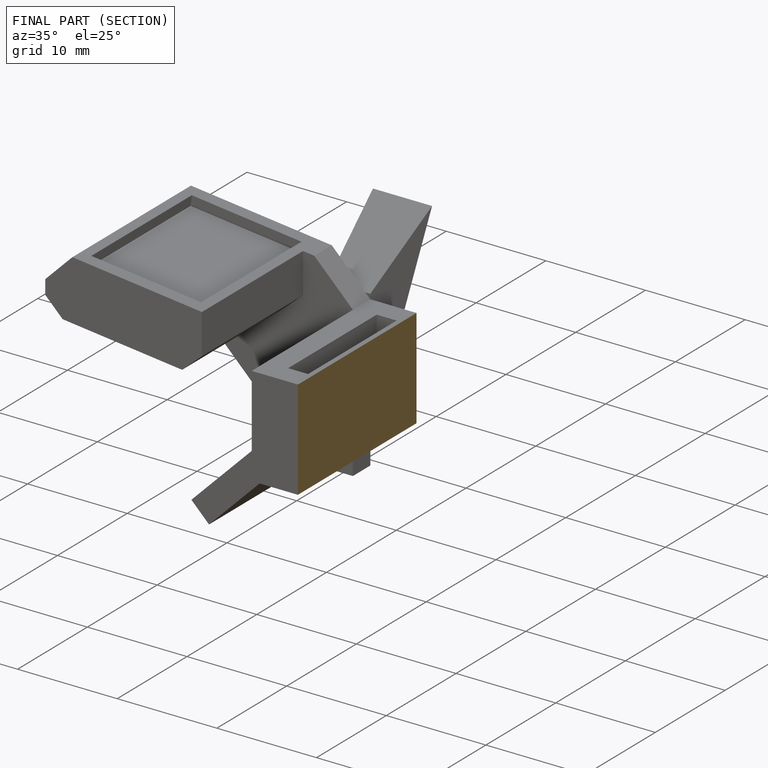
[diagram: finished part — half-section view (interior)]
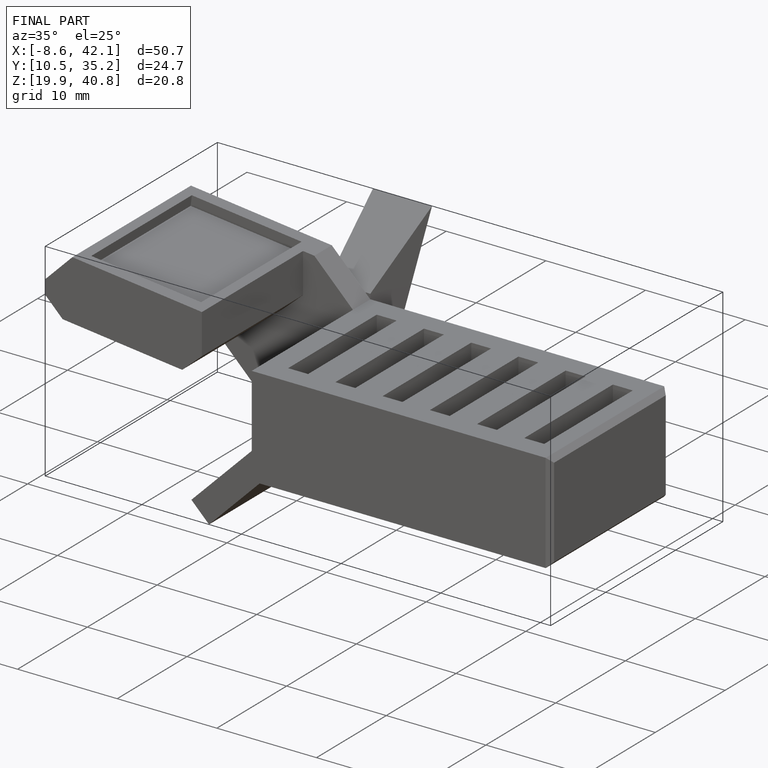
[diagram: finished part — iso view with bounding-box wireframe]
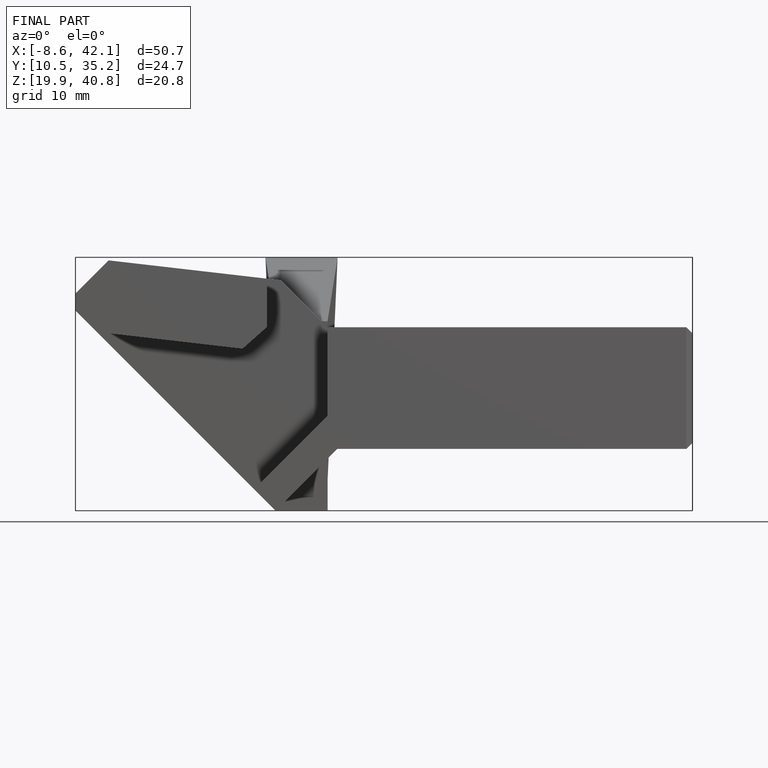
[diagram: finished part — front view with bounding-box wireframe]
